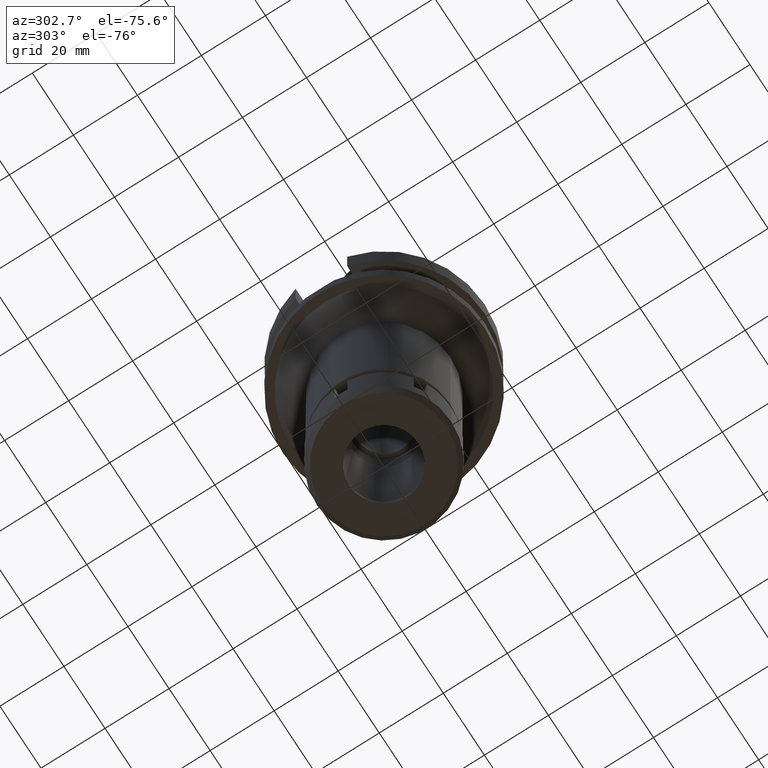
[diagram: clean part render]
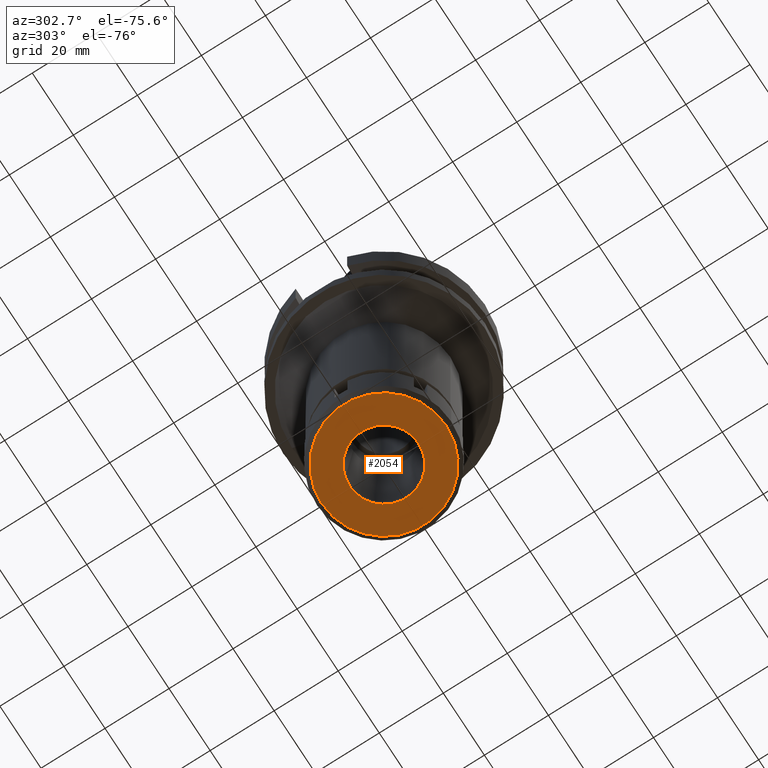
[diagram: same view with one face highlighted and labeled with its STEP entity id]
A machine part, auxiliary view. The second image highlights one B-rep face of the part: STEP entity #2054.
In plain terms, the highlighted planar face has unit normal (0, 0, -1).
Its self-contained STEP definition (entity closure, byte-faithful):
#211 = DIRECTION ( 'NONE',  ( 0.0000000000000000000, -1.000000000000000000, 0.0000000000000000000 ) ) ;
#275 = DIRECTION ( 'NONE',  ( 0.0000000000000000000, 0.0000000000000000000, -1.000000000000000000 ) ) ;
#287 = CIRCLE ( 'NONE', #2062, 19.50000000000000000 ) ;
#341 = FACE_BOUND ( 'NONE', #3268, .T. ) ;
#393 = EDGE_CURVE ( 'NONE', #2973, #2763, #287, .T. ) ;
#400 = EDGE_CURVE ( 'NONE', #2763, #2973, #1176, .T. ) ;
#776 = ORIENTED_EDGE ( 'NONE', *, *, #393, .F. ) ;
#879 = CIRCLE ( 'NONE', #2103, 10.75000000000000000 ) ;
#1028 = EDGE_LOOP ( 'NONE', ( #2206, #776 ) ) ;
#1037 = CARTESIAN_POINT ( 'NONE',  ( 0.0000000000000000000, 0.0000000000000000000, -16.00000000000000000 ) ) ;
#1089 = CARTESIAN_POINT ( 'NONE',  ( 0.0000000000000000000, 0.0000000000000000000, -16.00000000000000000 ) ) ;
#1107 = AXIS2_PLACEMENT_3D ( 'NONE', #1089, #275, #1402 ) ;
#1152 = DIRECTION ( 'NONE',  ( 0.0000000000000000000, -1.000000000000000000, 0.0000000000000000000 ) ) ;
#1176 = CIRCLE ( 'NONE', #2930, 19.50000000000000000 ) ;
#1296 = CARTESIAN_POINT ( 'NONE',  ( 0.0000000000000000000, 0.0000000000000000000, -16.00000000000000000 ) ) ;
#1402 = DIRECTION ( 'NONE',  ( 0.0000000000000000000, 1.000000000000000000, 0.0000000000000000000 ) ) ;
#1627 = DIRECTION ( 'NONE',  ( 0.0000000000000000000, 0.0000000000000000000, -1.000000000000000000 ) ) ;
#1724 = CARTESIAN_POINT ( 'NONE',  ( 0.0000000000000000000, 10.75000000000000000, -16.00000000000000000 ) ) ;
#1767 = AXIS2_PLACEMENT_3D ( 'NONE', #3090, #3355, #1152 ) ;
#1837 = DIRECTION ( 'NONE',  ( 0.0000000000000000000, 0.0000000000000000000, 1.000000000000000000 ) ) ;
#1940 = VERTEX_POINT ( 'NONE', #1724 ) ;
#1992 = CARTESIAN_POINT ( 'NONE',  ( 0.0000000000000000000, 0.0000000000000000000, -16.00000000000000000 ) ) ;
#2054 = ADVANCED_FACE ( 'NONE', ( #2225, #341 ), #3645, .T. ) ;
#2062 = AXIS2_PLACEMENT_3D ( 'NONE', #1296, #2693, #2942 ) ;
#2094 = CARTESIAN_POINT ( 'NONE',  ( 0.0000000000000000000, -19.50000000000000000, -16.00000000000000000 ) ) ;
#2103 = AXIS2_PLACEMENT_3D ( 'NONE', #1992, #1627, #211 ) ;
#2113 = ORIENTED_EDGE ( 'NONE', *, *, #2794, .F. ) ;
#2206 = ORIENTED_EDGE ( 'NONE', *, *, #400, .F. ) ;
#2209 = CIRCLE ( 'NONE', #1107, 10.75000000000000000 ) ;
#2225 = FACE_OUTER_BOUND ( 'NONE', #1028, .T. ) ;
#2523 = CARTESIAN_POINT ( 'NONE',  ( 0.0000000000000000000, 19.50000000000000000, -16.00000000000000000 ) ) ;
#2552 = ORIENTED_EDGE ( 'NONE', *, *, #2753, .F. ) ;
#2657 = DIRECTION ( 'NONE',  ( 0.0000000000000000000, 1.000000000000000000, 0.0000000000000000000 ) ) ;
#2693 = DIRECTION ( 'NONE',  ( 0.0000000000000000000, 0.0000000000000000000, 1.000000000000000000 ) ) ;
#2753 = EDGE_CURVE ( 'NONE', #3086, #1940, #879, .T. ) ;
#2763 = VERTEX_POINT ( 'NONE', #2523 ) ;
#2794 = EDGE_CURVE ( 'NONE', #1940, #3086, #2209, .T. ) ;
#2930 = AXIS2_PLACEMENT_3D ( 'NONE', #1037, #1837, #2657 ) ;
#2942 = DIRECTION ( 'NONE',  ( 0.0000000000000000000, -1.000000000000000000, 0.0000000000000000000 ) ) ;
#2973 = VERTEX_POINT ( 'NONE', #2094 ) ;
#2998 = CARTESIAN_POINT ( 'NONE',  ( 0.0000000000000000000, -10.75000000000000000, -16.00000000000000000 ) ) ;
#3086 = VERTEX_POINT ( 'NONE', #2998 ) ;
#3090 = CARTESIAN_POINT ( 'NONE',  ( 0.0000000000000000000, 0.0000000000000000000, -16.00000000000000000 ) ) ;
#3268 = EDGE_LOOP ( 'NONE', ( #2113, #2552 ) ) ;
#3355 = DIRECTION ( 'NONE',  ( 0.0000000000000000000, 0.0000000000000000000, -1.000000000000000000 ) ) ;
#3645 = PLANE ( 'NONE',  #1767 ) ;